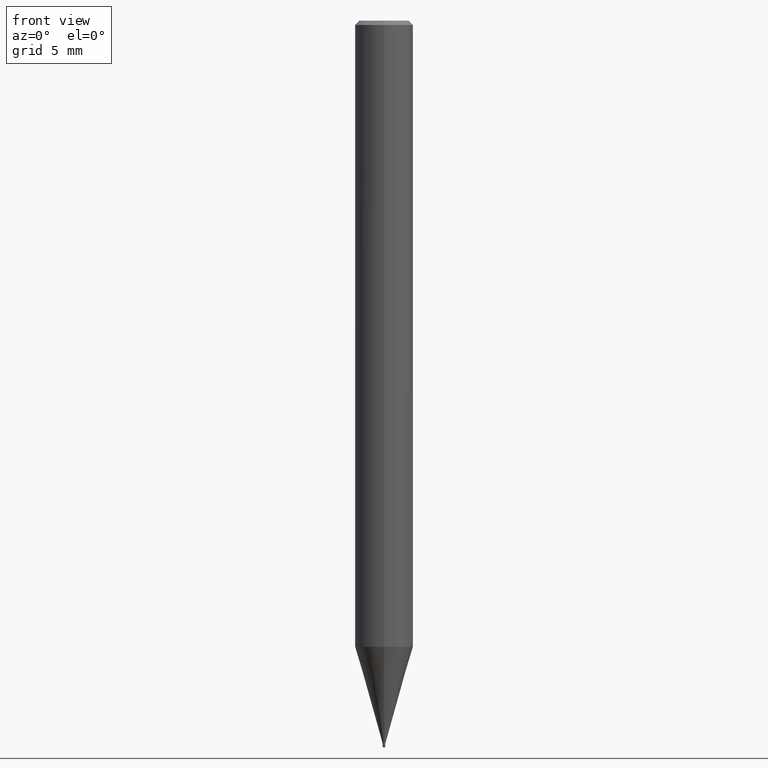
[diagram: clean part render]
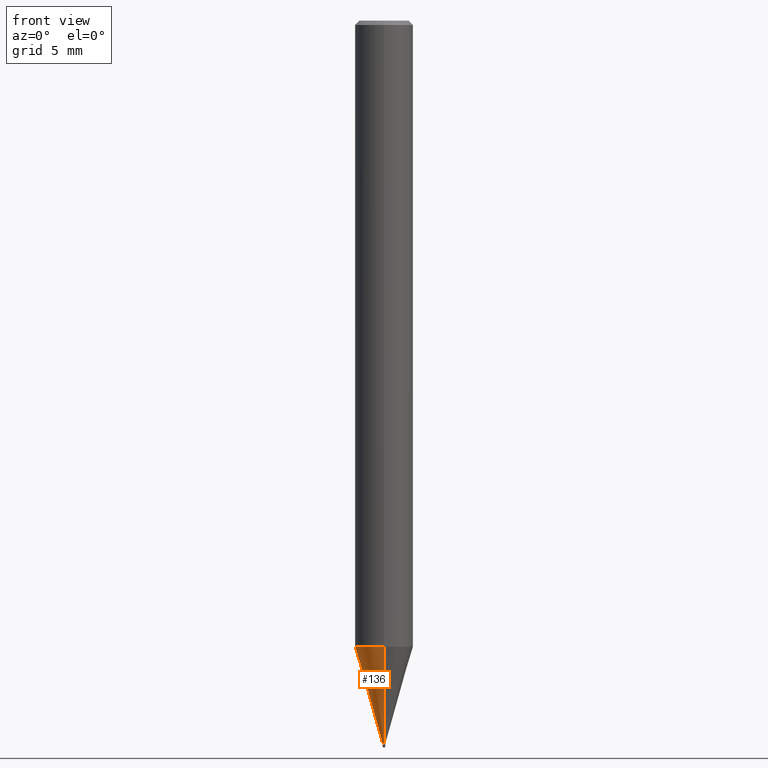
[diagram: same view with one face highlighted and labeled with its STEP entity id]
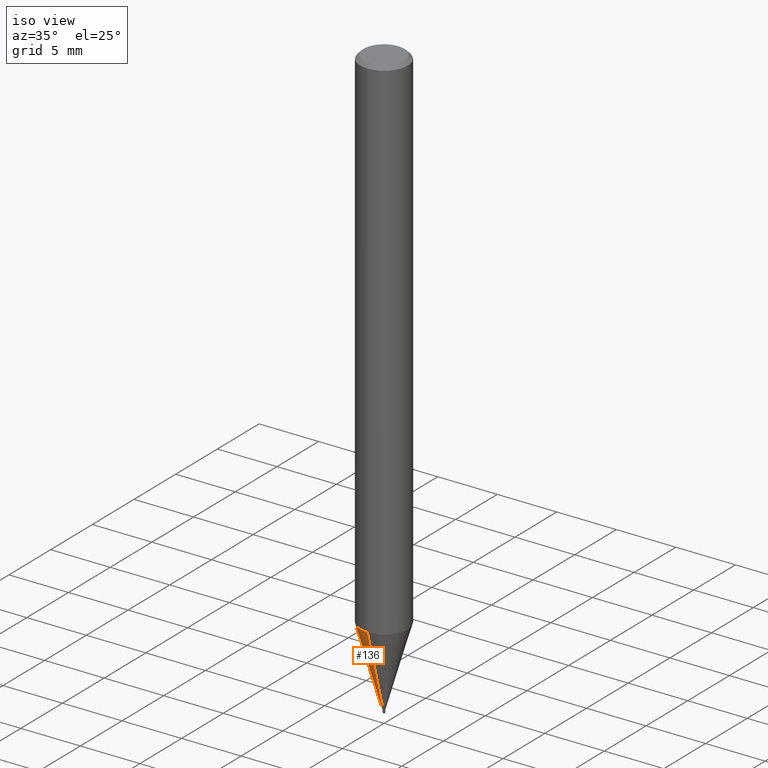
[diagram: same view with one face highlighted and labeled with its STEP entity id]
A machine part, front view. The second image highlights one B-rep face of the part: STEP entity #136.
A second angle (iso view) of the same face is appended — the face is thin or edge-on in the first view.
In plain terms, the highlighted conical surface has half-angle 16 deg.
Its self-contained STEP definition (entity closure, byte-faithful):
#88=VERTEX_POINT('',#214);
#102=VERTEX_POINT('',#230);
#106=EDGE_CURVE('',#128,#188,#234,.T.);
#110=EDGE_CURVE('',#88,#102,#238,.T.);
#122=EDGE_CURVE('',#128,#88,#252,.T.);
#128=VERTEX_POINT('',#258);
#134=EDGE_CURVE('',#102,#188,#266,.T.);
#136=ADVANCED_FACE('',(#268),#269,.T.);
#188=VERTEX_POINT('',#328);
#214=CARTESIAN_POINT('',(2.44915147732706E-016,-1.99995,-43.074));
#230=CARTESIAN_POINT('',(0.0,1.99995,-43.074));
#234=CIRCLE('',#371,0.09995);
#238=CIRCLE('',#376,1.99995);
#252=LINE('',#394,#395);
#258=CARTESIAN_POINT('',(1.22399405064546E-017,-0.09995,-49.7));
#266=LINE('',#412,#413);
#268=FACE_OUTER_BOUND('',#415,.T.);
#269=CONICAL_SURFACE('',#416,1.04995,0.279256176986881);
#328=CARTESIAN_POINT('',(0.0,0.09995,-49.7));
#371=AXIS2_PLACEMENT_3D('',#522,#523,#524);
#376=AXIS2_PLACEMENT_3D('',#525,#526,#527);
#394=CARTESIAN_POINT('',(1.28577544119581E-016,-1.04995,-46.387));
#395=VECTOR('',#548,1.0);
#412=CARTESIAN_POINT('',(-1.28577544119581E-016,1.04995,-46.387));
#413=VECTOR('',#569,1.0);
#415=EDGE_LOOP('',(#571,#572,#573,#574));
#416=AXIS2_PLACEMENT_3D('',#575,#576,#577);
#522=CARTESIAN_POINT('',(0.0,0.0,-49.7));
#523=DIRECTION('',(0.0,0.0,-1.0));
#524=DIRECTION('',(0.0,1.0,0.0));
#525=CARTESIAN_POINT('',(0.0,0.0,-43.074));
#526=DIRECTION('',(0.0,0.0,-1.0));
#527=DIRECTION('',(0.0,1.0,0.0));
#548=DIRECTION('',(3.37551373444795E-017,-0.275640717028123,0.961260732120179));
#569=DIRECTION('',(3.37551373444795E-017,-0.275640717028123,-0.961260732120179));
#571=ORIENTED_EDGE('',*,*,#134,.T.);
#572=ORIENTED_EDGE('',*,*,#106,.F.);
#573=ORIENTED_EDGE('',*,*,#122,.T.);
#574=ORIENTED_EDGE('',*,*,#110,.T.);
#575=CARTESIAN_POINT('',(0.0,0.0,-46.387));
#576=DIRECTION('',(-0.0,-0.0,1.0));
#577=DIRECTION('',(0.0,1.0,0.0));